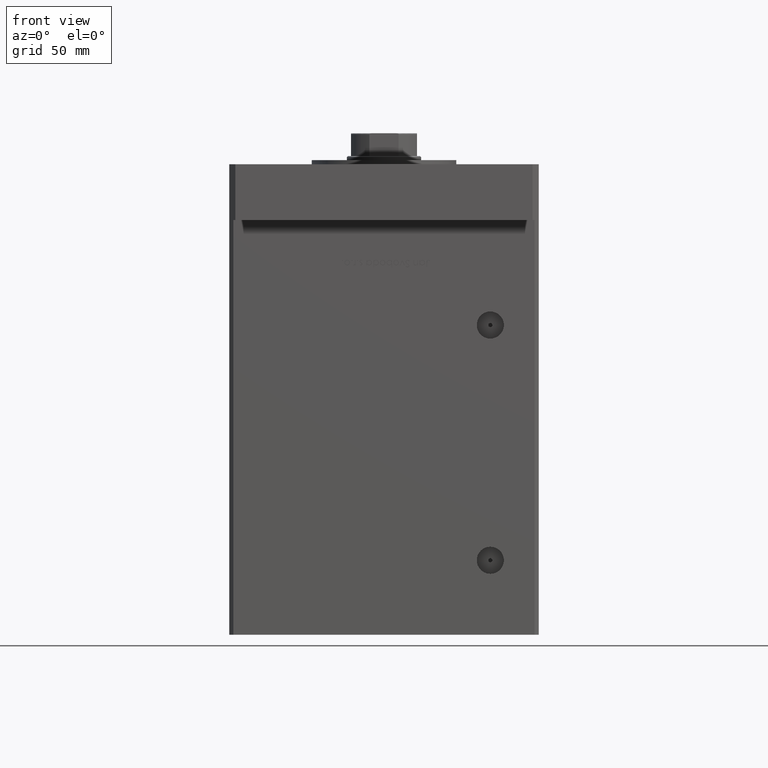
[diagram: clean part render]
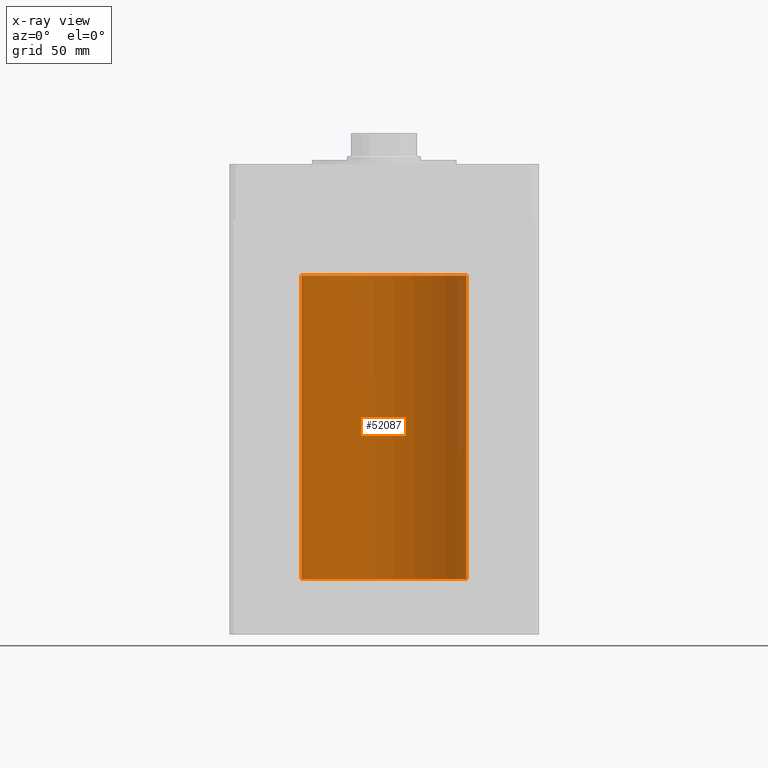
[diagram: x-ray — body ghosted, one internal face saturated and labeled with its STEP entity id]
A machine part, front view, then the same camera in x-ray: the body is ghosted and one INTERNAL B-rep face — a face not visible from any outside direction — is saturated and labeled: STEP entity #52087.
In plain terms, the highlighted cylindrical surface (partial cylindrical patch) has radius 40 mm, axis along (-0, -0, -1).
Its self-contained STEP definition (entity closure, byte-faithful):
#327 = CIRCLE ( 'NONE', #1188, 40.00000000000000000 ) ;
#1188 = AXIS2_PLACEMENT_3D ( 'NONE', #8338, #20808, #29442 ) ;
#2213 = DIRECTION ( 'NONE',  ( -0.000000000000000000, -0.000000000000000000, -1.000000000000000000 ) ) ;
#2479 = DIRECTION ( 'NONE',  ( -1.000000000000000000, 0.000000000000000000, 0.000000000000000000 ) ) ;
#6294 = DIRECTION ( 'NONE',  ( -0.000000000000000000, -0.000000000000000000, -1.000000000000000000 ) ) ;
#6537 = FACE_OUTER_BOUND ( 'NONE', #13583, .T. ) ;
#7120 = CARTESIAN_POINT ( 'NONE',  ( -40.00000000000000000, 0.000000000000000000, 0.000000000000000000 ) ) ;
#7779 = VECTOR ( 'NONE', #6294, 1000.000000000000000 ) ;
#8338 = CARTESIAN_POINT ( 'NONE',  ( 0.000000000000000000, 0.000000000000000000, 147.0000000000000000 ) ) ;
#12504 = CARTESIAN_POINT ( 'NONE',  ( -40.00000000000000000, 0.000000000000000000, 147.0000000000000000 ) ) ;
#12684 = DIRECTION ( 'NONE',  ( -0.000000000000000000, 0.000000000000000000, 1.000000000000000000 ) ) ;
#13583 = EDGE_LOOP ( 'NONE', ( #41198, #36540, #17368, #20966 ) ) ;
#17368 = ORIENTED_EDGE ( 'NONE', *, *, #29115, .T. ) ;
#17796 = EDGE_CURVE ( 'NONE', #33404, #45192, #34995, .T. ) ;
#20808 = DIRECTION ( 'NONE',  ( -0.000000000000000000, 0.000000000000000000, 1.000000000000000000 ) ) ;
#20966 = ORIENTED_EDGE ( 'NONE', *, *, #43374, .F. ) ;
#21085 = DIRECTION ( 'NONE',  ( 1.000000000000000000, 0.000000000000000000, 0.000000000000000000 ) ) ;
#21622 = CARTESIAN_POINT ( 'NONE',  ( 0.000000000000000000, 0.000000000000000000, 0.000000000000000000 ) ) ;
#26075 = CARTESIAN_POINT ( 'NONE',  ( -40.00000000000000000, 0.000000000000000000, 147.0000000000000000 ) ) ;
#29115 = EDGE_CURVE ( 'NONE', #34086, #51009, #41800, .T. ) ;
#29442 = DIRECTION ( 'NONE',  ( 1.000000000000000000, 0.000000000000000000, 0.000000000000000000 ) ) ;
#29948 = CIRCLE ( 'NONE', #33396, 40.00000000000000000 ) ;
#33396 = AXIS2_PLACEMENT_3D ( 'NONE', #21622, #12684, #21085 ) ;
#33404 = VERTEX_POINT ( 'NONE', #35182 ) ;
#34086 = VERTEX_POINT ( 'NONE', #12504 ) ;
#34719 = CYLINDRICAL_SURFACE ( 'NONE', #36130, 40.00000000000000000 ) ;
#34995 = LINE ( 'NONE', #51260, #7779 ) ;
#35182 = CARTESIAN_POINT ( 'NONE',  ( 40.00000000000000000, 4.898587196589413026E-15, 147.0000000000000000 ) ) ;
#35610 = EDGE_CURVE ( 'NONE', #33404, #34086, #327, .T. ) ;
#36130 = AXIS2_PLACEMENT_3D ( 'NONE', #43886, #2213, #2479 ) ;
#36540 = ORIENTED_EDGE ( 'NONE', *, *, #35610, .T. ) ;
#36757 = CARTESIAN_POINT ( 'NONE',  ( 40.00000000000000000, 4.898587196589413026E-15, 0.000000000000000000 ) ) ;
#41198 = ORIENTED_EDGE ( 'NONE', *, *, #17796, .F. ) ;
#41800 = LINE ( 'NONE', #26075, #47789 ) ;
#43374 = EDGE_CURVE ( 'NONE', #45192, #51009, #29948, .T. ) ;
#43886 = CARTESIAN_POINT ( 'NONE',  ( 0.000000000000000000, 0.000000000000000000, 147.0000000000000000 ) ) ;
#45192 = VERTEX_POINT ( 'NONE', #36757 ) ;
#46673 = DIRECTION ( 'NONE',  ( -0.000000000000000000, -0.000000000000000000, -1.000000000000000000 ) ) ;
#47789 = VECTOR ( 'NONE', #46673, 1000.000000000000000 ) ;
#51009 = VERTEX_POINT ( 'NONE', #7120 ) ;
#51260 = CARTESIAN_POINT ( 'NONE',  ( 40.00000000000000000, 4.898587196589413026E-15, 147.0000000000000000 ) ) ;
#52087 = ADVANCED_FACE ( 'NONE', ( #6537 ), #34719, .F. ) ;